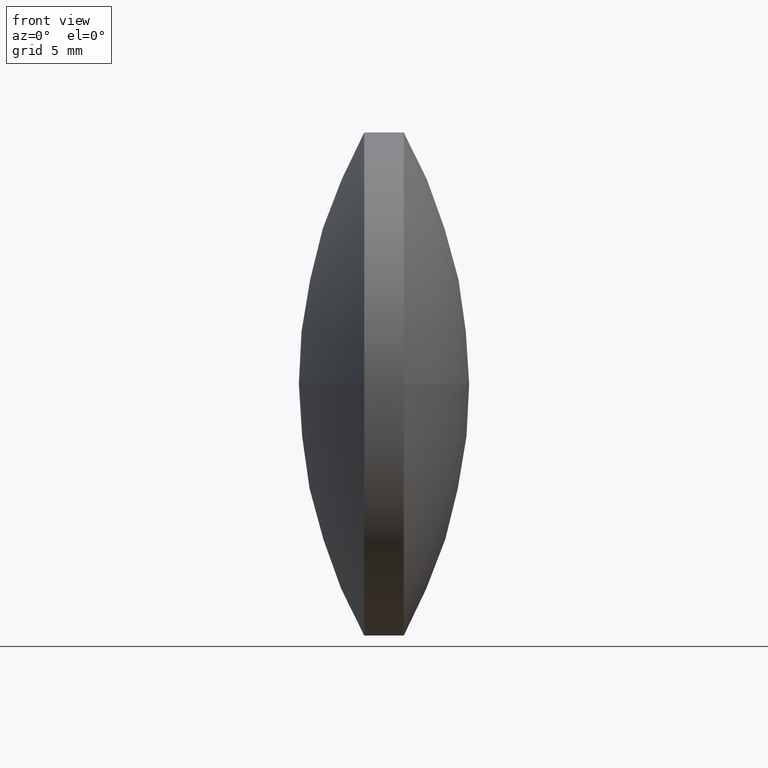
[diagram: clean part render]
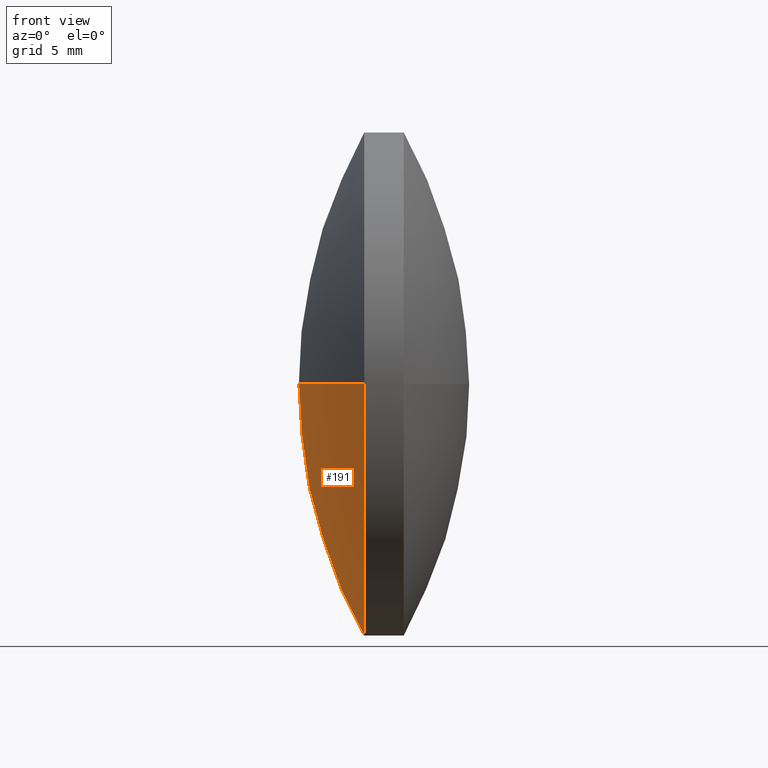
[diagram: same view with one face highlighted and labeled with its STEP entity id]
A machine part, front view. The second image highlights one B-rep face of the part: STEP entity #191.
In plain terms, the highlighted spherical surface has radius 26.0866 mm.
Its self-contained STEP definition (entity closure, byte-faithful):
#12 = AXIS2_PLACEMENT_3D ( 'NONE', #189, #221, #245 ) ;
#18 = CARTESIAN_POINT ( 'NONE',  ( 82.15833663180539800, 48.61611302318477400, 0.0000000000000000000 ) ) ;
#33 = DIRECTION ( 'NONE',  ( -1.000000000000000000, -0.0000000000000000000, -0.0000000000000000000 ) ) ;
#44 = EDGE_CURVE ( 'NONE', #195, #315, #214, .T. ) ;
#46 = DIRECTION ( 'NONE',  ( -0.0000000000000000000, 0.0000000000000000000, -1.000000000000000000 ) ) ;
#59 = CIRCLE ( 'NONE', #67, 12.69999999999999600 ) ;
#64 = EDGE_CURVE ( 'NONE', #113, #195, #59, .T. ) ;
#67 = AXIS2_PLACEMENT_3D ( 'NONE', #328, #33, #302 ) ;
#84 = CARTESIAN_POINT ( 'NONE',  ( 85.45852234609111500, 48.61611302318478100, 0.0000000000000000000 ) ) ;
#90 = CARTESIAN_POINT ( 'NONE',  ( 85.45852234609111500, 61.31611302318477600, 0.0000000000000000000 ) ) ;
#93 = ORIENTED_EDGE ( 'NONE', *, *, #223, .F. ) ;
#108 = SPHERICAL_SURFACE ( 'NONE', #122, 26.08659643053482200 ) ;
#109 = DIRECTION ( 'NONE',  ( 0.0000000000000000000, 0.0000000000000000000, 1.000000000000000000 ) ) ;
#113 = VERTEX_POINT ( 'NONE', #90 ) ;
#115 = CIRCLE ( 'NONE', #12, 26.08659643053481900 ) ;
#122 = AXIS2_PLACEMENT_3D ( 'NONE', #284, #46, #313 ) ;
#147 = EDGE_CURVE ( 'NONE', #315, #271, #115, .T. ) ;
#156 = AXIS2_PLACEMENT_3D ( 'NONE', #84, #270, #109 ) ;
#158 = ORIENTED_EDGE ( 'NONE', *, *, #64, .T. ) ;
#169 = FACE_OUTER_BOUND ( 'NONE', #173, .T. ) ;
#173 = EDGE_LOOP ( 'NONE', ( #158, #192, #320, #93 ) ) ;
#176 = CARTESIAN_POINT ( 'NONE',  ( 85.45852234609111500, 35.91611302318477800, -1.555301434917138000E-015 ) ) ;
#189 = CARTESIAN_POINT ( 'NONE',  ( 108.2449330623402200, 48.61611302318477400, 0.0000000000000000000 ) ) ;
#191 = ADVANCED_FACE ( 'NONE', ( #169 ), #108, .T. ) ;
#192 = ORIENTED_EDGE ( 'NONE', *, *, #44, .T. ) ;
#195 = VERTEX_POINT ( 'NONE', #197 ) ;
#197 = CARTESIAN_POINT ( 'NONE',  ( 85.45852234609111500, 48.61611302318478100, -12.69999999999999600 ) ) ;
#214 = CIRCLE ( 'NONE', #156, 12.69999999999999600 ) ;
#221 = DIRECTION ( 'NONE',  ( 0.0000000000000000000, 1.224646799147353200E-016, -1.000000000000000000 ) ) ;
#223 = EDGE_CURVE ( 'NONE', #113, #271, #345, .T. ) ;
#245 = DIRECTION ( 'NONE',  ( 0.0000000000000000000, 1.000000000000000000, 1.224646799147353500E-016 ) ) ;
#256 = DIRECTION ( 'NONE',  ( 1.000000000000000000, 0.0000000000000000000, 0.0000000000000000000 ) ) ;
#270 = DIRECTION ( 'NONE',  ( -1.000000000000000000, -0.0000000000000000000, -0.0000000000000000000 ) ) ;
#271 = VERTEX_POINT ( 'NONE', #18 ) ;
#284 = CARTESIAN_POINT ( 'NONE',  ( 108.2449330623402200, 48.61611302318477400, 0.0000000000000000000 ) ) ;
#302 = DIRECTION ( 'NONE',  ( 0.0000000000000000000, 0.0000000000000000000, 1.000000000000000000 ) ) ;
#312 = AXIS2_PLACEMENT_3D ( 'NONE', #314, #340, #256 ) ;
#313 = DIRECTION ( 'NONE',  ( 0.0000000000000000000, 1.000000000000000000, 0.0000000000000000000 ) ) ;
#314 = CARTESIAN_POINT ( 'NONE',  ( 108.2449330623402200, 48.61611302318477400, 0.0000000000000000000 ) ) ;
#315 = VERTEX_POINT ( 'NONE', #176 ) ;
#320 = ORIENTED_EDGE ( 'NONE', *, *, #147, .T. ) ;
#328 = CARTESIAN_POINT ( 'NONE',  ( 85.45852234609111500, 48.61611302318478100, 0.0000000000000000000 ) ) ;
#340 = DIRECTION ( 'NONE',  ( -0.0000000000000000000, 0.0000000000000000000, 1.000000000000000000 ) ) ;
#345 = CIRCLE ( 'NONE', #312, 26.08659643053483300 ) ;